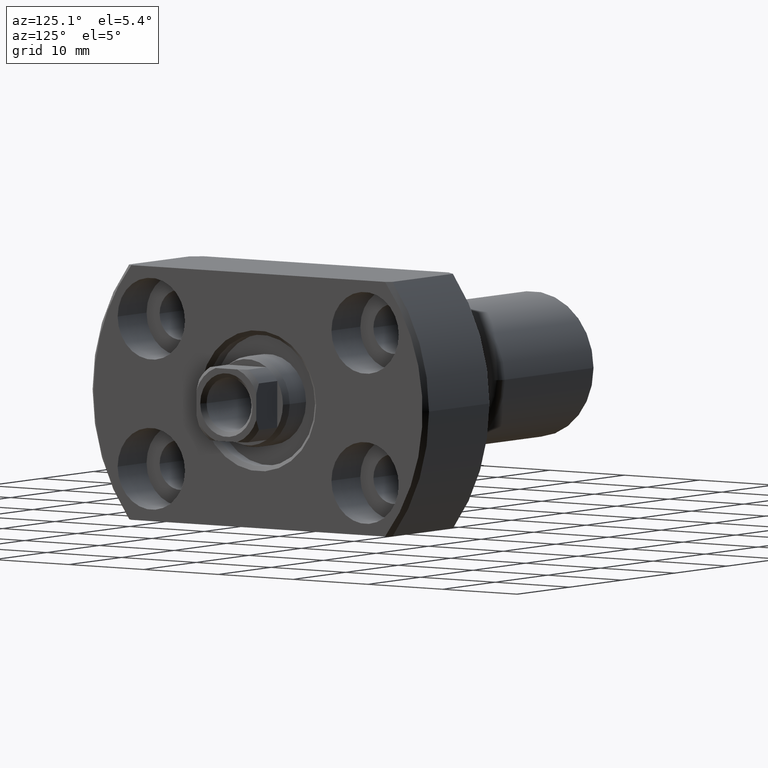
[diagram: clean part render]
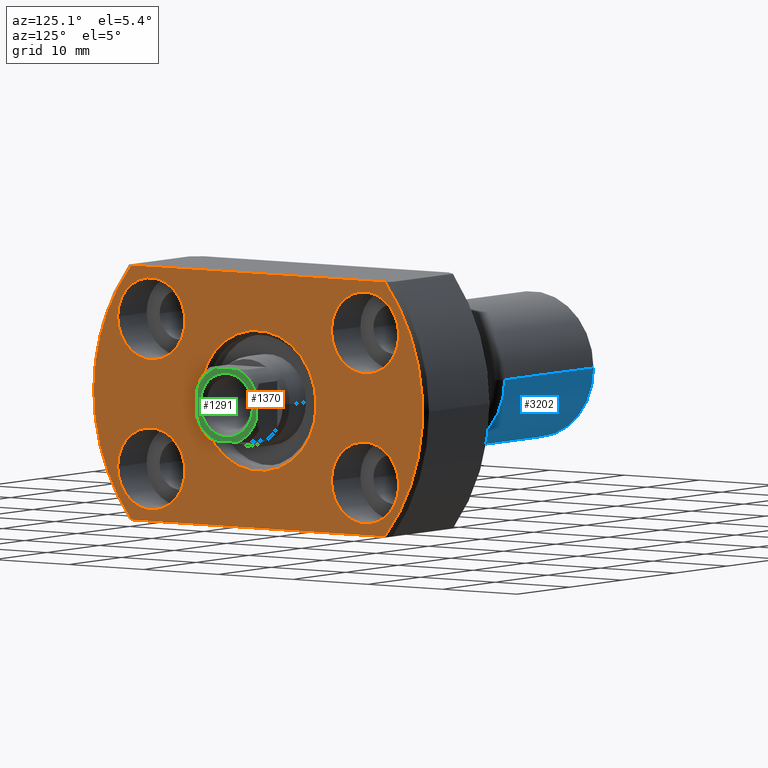
[diagram: same view with three faces highlighted in distinct colors, each labeled with its STEP entity id]
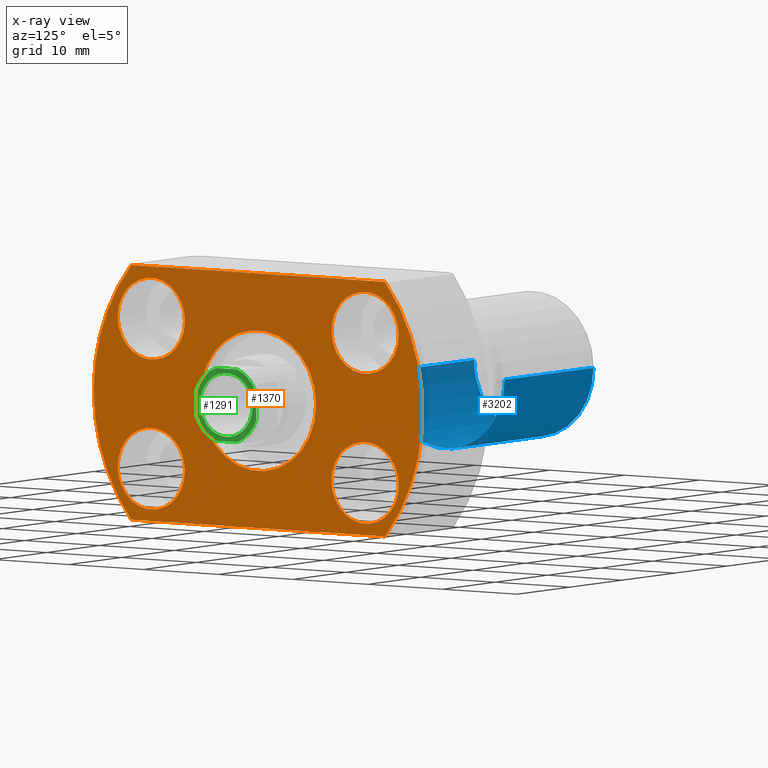
[diagram: x-ray of the same camera — body ghosted, the three highlighted faces saturated]
A machine part, auxiliary view with three faces highlighted in distinct colors.
The next image is the same camera in x-ray (body ghosted, the three faces saturated) — at least one of them is partly hidden behind the body in this view.
Their STEP definitions:

[orange] entity #1370 — the highlighted planar face has unit normal (-1, -0, 0).
#2 = VERTEX_POINT ( 'NONE', #2962 ) ;
#45 = EDGE_LOOP ( 'NONE', ( #537, #2956 ) ) ;
#49 = VERTEX_POINT ( 'NONE', #1279 ) ;
#56 = CARTESIAN_POINT ( 'NONE',  ( 24.50000000000000000, 1.224646799150062051E-17, 0.000000000000000000 ) ) ;
#79 = CARTESIAN_POINT ( 'NONE',  ( 24.50000000000000000, -7.071841973582562623E-13, 0.000000000000000000 ) ) ;
#84 = ORIENTED_EDGE ( 'NONE', *, *, #1112, .F. ) ;
#112 = VERTEX_POINT ( 'NONE', #459 ) ;
#146 = EDGE_CURVE ( 'NONE', #499, #426, #840, .T. ) ;
#149 = CIRCLE ( 'NONE', #1865, 4.500000000000205169 ) ;
#162 = VERTEX_POINT ( 'NONE', #245 ) ;
#166 = VECTOR ( 'NONE', #541, 1000.000000000000000 ) ;
#245 = CARTESIAN_POINT ( 'NONE',  ( 24.50000000000000000, 16.97056274847713553, 14.00000000000000355 ) ) ;
#254 = PLANE ( 'NONE',  #738 ) ;
#262 = AXIS2_PLACEMENT_3D ( 'NONE', #79, #809, #542 ) ;
#318 = ORIENTED_EDGE ( 'NONE', *, *, #2519, .T. ) ;
#336 = CIRCLE ( 'NONE', #427, 4.500000000000205169 ) ;
#344 = CARTESIAN_POINT ( 'NONE',  ( 24.50000000000000000, -22.00000000000000000, -14.00000000000000355 ) ) ;
#349 = CARTESIAN_POINT ( 'NONE',  ( 24.50000000000000000, 1.224646799150062051E-17, 0.000000000000000000 ) ) ;
#368 = DIRECTION ( 'NONE',  ( 1.000000000000000000, -2.889258529047467066E-14, 0.000000000000000000 ) ) ;
#419 = VERTEX_POINT ( 'NONE', #1128 ) ;
#420 = AXIS2_PLACEMENT_3D ( 'NONE', #3061, #1420, #1854 ) ;
#426 = VERTEX_POINT ( 'NONE', #679 ) ;
#427 = AXIS2_PLACEMENT_3D ( 'NONE', #779, #549, #1533 ) ;
#429 = DIRECTION ( 'NONE',  ( 2.852656382717284985E-14, 1.000000000000000000, 0.000000000000000000 ) ) ;
#435 = DIRECTION ( 'NONE',  ( 0.000000000000000000, 1.000000000000000000, 0.000000000000000000 ) ) ;
#459 = CARTESIAN_POINT ( 'NONE',  ( 24.49999999999971578, -9.800000000000501643, -8.250000000000000000 ) ) ;
#461 = EDGE_LOOP ( 'NONE', ( #1848, #2484, #318, #973, #2518 ) ) ;
#482 = EDGE_LOOP ( 'NONE', ( #1912, #1682 ) ) ;
#499 = VERTEX_POINT ( 'NONE', #2864 ) ;
#509 = CARTESIAN_POINT ( 'NONE',  ( 24.49999999999958789, -14.30000000000070770, 8.250000000000000000 ) ) ;
#537 = ORIENTED_EDGE ( 'NONE', *, *, #2897, .T. ) ;
#541 = DIRECTION ( 'NONE',  ( -4.998558363877804092E-19, 1.000000000000000000, -0.000000000000000000 ) ) ;
#542 = DIRECTION ( 'NONE',  ( 0.000000000000000000, -1.000000000000000000, 0.000000000000000000 ) ) ;
#549 = DIRECTION ( 'NONE',  ( 1.000000000000000000, -2.886466111666351885E-14, 0.000000000000000000 ) ) ;
#575 = EDGE_LOOP ( 'NONE', ( #3106, #84 ) ) ;
#579 = CIRCLE ( 'NONE', #2306, 4.500000000000206946 ) ;
#591 = CIRCLE ( 'NONE', #1363, 7.749999999999547029 ) ;
#596 = EDGE_CURVE ( 'NONE', #2818, #162, #963, .T. ) ;
#642 = AXIS2_PLACEMENT_3D ( 'NONE', #56, #2790, #1538 ) ;
#655 = ORIENTED_EDGE ( 'NONE', *, *, #1297, .F. ) ;
#679 = CARTESIAN_POINT ( 'NONE',  ( 24.49999999999945999, -18.80000000000091376, 8.250000000000000000 ) ) ;
#738 = AXIS2_PLACEMENT_3D ( 'NONE', #1241, #2215, #2701 ) ;
#779 = CARTESIAN_POINT ( 'NONE',  ( 24.50000000000041211, 14.29999999999929194, 8.250000000000000000 ) ) ;
#809 = DIRECTION ( 'NONE',  ( -1.000000000000000000, -4.998558363877804092E-19, 0.000000000000000000 ) ) ;
#824 = LINE ( 'NONE', #344, #166 ) ;
#840 = CIRCLE ( 'NONE', #2504, 4.500000000000205169 ) ;
#879 = EDGE_CURVE ( 'NONE', #426, #499, #2664, .T. ) ;
#898 = CARTESIAN_POINT ( 'NONE',  ( 24.50000000000000000, -16.97056274847713553, -14.00000000000000355 ) ) ;
#963 = LINE ( 'NONE', #1910, #3074 ) ;
#969 = DIRECTION ( 'NONE',  ( 1.000000000000000000, -2.889258529047467066E-14, 0.000000000000000000 ) ) ;
#973 = ORIENTED_EDGE ( 'NONE', *, *, #1499, .T. ) ;
#983 = FACE_BOUND ( 'NONE', #45, .T. ) ;
#1038 = VERTEX_POINT ( 'NONE', #2883 ) ;
#1047 = DIRECTION ( 'NONE',  ( -1.000000000000000000, -4.998558363877804092E-19, 0.000000000000000000 ) ) ;
#1112 = EDGE_CURVE ( 'NONE', #2802, #2, #336, .T. ) ;
#1121 = CARTESIAN_POINT ( 'NONE',  ( 24.50000000000000000, 16.97056274847713553, -14.00000000000000355 ) ) ;
#1128 = CARTESIAN_POINT ( 'NONE',  ( 24.50000000000000000, -7.750000000000701661, 9.491012693391979898E-16 ) ) ;
#1151 = DIRECTION ( 'NONE',  ( 2.852656382717286247E-14, 1.000000000000000000, 0.000000000000000000 ) ) ;
#1165 = DIRECTION ( 'NONE',  ( -0.000000000000000000, 1.000000000000000000, 0.000000000000000000 ) ) ;
#1186 = FACE_BOUND ( 'NONE', #575, .T. ) ;
#1241 = CARTESIAN_POINT ( 'NONE',  ( 24.50000000000000000, -22.00000000000000000, 0.000000000000000000 ) ) ;
#1276 = DIRECTION ( 'NONE',  ( 1.000000000000000000, -2.889258529047467066E-14, 0.000000000000000000 ) ) ;
#1279 = CARTESIAN_POINT ( 'NONE',  ( 24.50000000000000000, -22.00000000000000000, 0.000000000000000000 ) ) ;
#1297 = EDGE_CURVE ( 'NONE', #1362, #112, #1791, .T. ) ;
#1362 = VERTEX_POINT ( 'NONE', #2999 ) ;
#1363 = AXIS2_PLACEMENT_3D ( 'NONE', #2318, #1047, #1796 ) ;
#1370 = ADVANCED_FACE ( 'NONE', ( #983, #1186, #2943, #1991, #1703, #2197 ), #254, .F. ) ;
#1389 = CIRCLE ( 'NONE', #420, 22.00000000000000000 ) ;
#1391 = CARTESIAN_POINT ( 'NONE',  ( 24.50000000000054357, 18.79999999999949623, -8.250000000000000000 ) ) ;
#1420 = DIRECTION ( 'NONE',  ( 1.000000000000000000, 4.998558363877804092E-19, -0.000000000000000000 ) ) ;
#1434 = EDGE_CURVE ( 'NONE', #419, #1038, #591, .T. ) ;
#1448 = CIRCLE ( 'NONE', #2128, 4.500000000000205169 ) ;
#1499 = EDGE_CURVE ( 'NONE', #1565, #2969, #824, .T. ) ;
#1507 = DIRECTION ( 'NONE',  ( 2.852656382717286247E-14, 1.000000000000000000, 0.000000000000000000 ) ) ;
#1533 = DIRECTION ( 'NONE',  ( 2.852656382717286247E-14, 1.000000000000000000, 0.000000000000000000 ) ) ;
#1538 = DIRECTION ( 'NONE',  ( 0.000000000000000000, 1.000000000000000000, 0.000000000000000000 ) ) ;
#1565 = VERTEX_POINT ( 'NONE', #898 ) ;
#1682 = ORIENTED_EDGE ( 'NONE', *, *, #2947, .F. ) ;
#1687 = DIRECTION ( 'NONE',  ( 1.000000000000000000, 4.998558363877804092E-19, -0.000000000000000000 ) ) ;
#1703 = FACE_BOUND ( 'NONE', #482, .T. ) ;
#1714 = AXIS2_PLACEMENT_3D ( 'NONE', #349, #1687, #435 ) ;
#1721 = CIRCLE ( 'NONE', #2087, 4.500000000000205169 ) ;
#1734 = DIRECTION ( 'NONE',  ( 2.852656382717286247E-14, 1.000000000000000000, 0.000000000000000000 ) ) ;
#1791 = CIRCLE ( 'NONE', #2053, 4.500000000000206946 ) ;
#1796 = DIRECTION ( 'NONE',  ( 0.000000000000000000, -1.000000000000000000, 0.000000000000000000 ) ) ;
#1810 = CARTESIAN_POINT ( 'NONE',  ( 24.50000000000028422, 9.799999999999087663, 8.250000000000000000 ) ) ;
#1848 = ORIENTED_EDGE ( 'NONE', *, *, #596, .F. ) ;
#1854 = DIRECTION ( 'NONE',  ( 0.000000000000000000, 1.000000000000000000, 0.000000000000000000 ) ) ;
#1865 = AXIS2_PLACEMENT_3D ( 'NONE', #2961, #2198, #1507 ) ;
#1893 = EDGE_CURVE ( 'NONE', #2818, #49, #2682, .T. ) ;
#1910 = CARTESIAN_POINT ( 'NONE',  ( 24.50000000000000000, 17.61391495380915018, 14.00000000000000355 ) ) ;
#1912 = ORIENTED_EDGE ( 'NONE', *, *, #2239, .F. ) ;
#1915 = CARTESIAN_POINT ( 'NONE',  ( 24.50000000000041211, 14.29999999999929194, -8.250000000000000000 ) ) ;
#1991 = FACE_BOUND ( 'NONE', #2794, .T. ) ;
#2053 = AXIS2_PLACEMENT_3D ( 'NONE', #2237, #969, #2686 ) ;
#2087 = AXIS2_PLACEMENT_3D ( 'NONE', #1915, #2379, #1151 ) ;
#2100 = CARTESIAN_POINT ( 'NONE',  ( 24.50000000000000000, -16.97056274847713553, 14.00000000000000355 ) ) ;
#2128 = AXIS2_PLACEMENT_3D ( 'NONE', #3159, #3215, #1734 ) ;
#2168 = CARTESIAN_POINT ( 'NONE',  ( 24.49999999999958789, -14.30000000000070770, 8.250000000000000000 ) ) ;
#2181 = VERTEX_POINT ( 'NONE', #1391 ) ;
#2197 = FACE_OUTER_BOUND ( 'NONE', #461, .T. ) ;
#2198 = DIRECTION ( 'NONE',  ( 1.000000000000000000, -2.886466111666351885E-14, 0.000000000000000000 ) ) ;
#2200 = AXIS2_PLACEMENT_3D ( 'NONE', #509, #1276, #2471 ) ;
#2215 = DIRECTION ( 'NONE',  ( -1.000000000000000000, -4.998558363877804092E-19, 0.000000000000000000 ) ) ;
#2231 = ORIENTED_EDGE ( 'NONE', *, *, #3034, .F. ) ;
#2237 = CARTESIAN_POINT ( 'NONE',  ( 24.49999999999958789, -14.30000000000070770, -8.250000000000000000 ) ) ;
#2239 = EDGE_CURVE ( 'NONE', #2181, #2544, #1448, .T. ) ;
#2306 = AXIS2_PLACEMENT_3D ( 'NONE', #3115, #368, #429 ) ;
#2318 = CARTESIAN_POINT ( 'NONE',  ( 24.50000000000000000, -7.071841973582562623E-13, 0.000000000000000000 ) ) ;
#2379 = DIRECTION ( 'NONE',  ( 1.000000000000000000, -2.889258529047467066E-14, 0.000000000000000000 ) ) ;
#2440 = CIRCLE ( 'NONE', #262, 7.749999999999547029 ) ;
#2471 = DIRECTION ( 'NONE',  ( 2.852656382717286247E-14, 1.000000000000000000, 0.000000000000000000 ) ) ;
#2484 = ORIENTED_EDGE ( 'NONE', *, *, #1893, .T. ) ;
#2504 = AXIS2_PLACEMENT_3D ( 'NONE', #2168, #2913, #2965 ) ;
#2518 = ORIENTED_EDGE ( 'NONE', *, *, #2570, .T. ) ;
#2519 = EDGE_CURVE ( 'NONE', #49, #1565, #1389, .T. ) ;
#2544 = VERTEX_POINT ( 'NONE', #2583 ) ;
#2570 = EDGE_CURVE ( 'NONE', #2969, #162, #2756, .T. ) ;
#2581 = ORIENTED_EDGE ( 'NONE', *, *, #879, .F. ) ;
#2583 = CARTESIAN_POINT ( 'NONE',  ( 24.50000000000028422, 9.799999999999087663, -8.250000000000000000 ) ) ;
#2643 = ORIENTED_EDGE ( 'NONE', *, *, #146, .F. ) ;
#2664 = CIRCLE ( 'NONE', #2200, 4.500000000000205169 ) ;
#2682 = CIRCLE ( 'NONE', #642, 22.00000000000000000 ) ;
#2686 = DIRECTION ( 'NONE',  ( 2.852656382717284985E-14, 1.000000000000000000, 0.000000000000000000 ) ) ;
#2700 = EDGE_CURVE ( 'NONE', #2, #2802, #149, .T. ) ;
#2701 = DIRECTION ( 'NONE',  ( 4.998558363877804092E-19, -1.000000000000000000, 0.000000000000000000 ) ) ;
#2756 = CIRCLE ( 'NONE', #1714, 22.00000000000000000 ) ;
#2790 = DIRECTION ( 'NONE',  ( 1.000000000000000000, 4.998558363877804092E-19, -0.000000000000000000 ) ) ;
#2794 = EDGE_LOOP ( 'NONE', ( #2231, #655 ) ) ;
#2802 = VERTEX_POINT ( 'NONE', #1810 ) ;
#2818 = VERTEX_POINT ( 'NONE', #2100 ) ;
#2864 = CARTESIAN_POINT ( 'NONE',  ( 24.49999999999971578, -9.800000000000503420, 8.250000000000000000 ) ) ;
#2883 = CARTESIAN_POINT ( 'NONE',  ( 24.50000000000000000, 7.749999999998841815, 0.000000000000000000 ) ) ;
#2897 = EDGE_CURVE ( 'NONE', #1038, #419, #2440, .T. ) ;
#2913 = DIRECTION ( 'NONE',  ( 1.000000000000000000, -2.889258529047467066E-14, 0.000000000000000000 ) ) ;
#2935 = EDGE_LOOP ( 'NONE', ( #2643, #2581 ) ) ;
#2943 = FACE_BOUND ( 'NONE', #2935, .T. ) ;
#2947 = EDGE_CURVE ( 'NONE', #2544, #2181, #1721, .T. ) ;
#2956 = ORIENTED_EDGE ( 'NONE', *, *, #1434, .T. ) ;
#2961 = CARTESIAN_POINT ( 'NONE',  ( 24.50000000000041211, 14.29999999999929194, 8.250000000000000000 ) ) ;
#2962 = CARTESIAN_POINT ( 'NONE',  ( 24.50000000000054357, 18.79999999999949623, 8.250000000000000000 ) ) ;
#2965 = DIRECTION ( 'NONE',  ( 2.852656382717286247E-14, 1.000000000000000000, 0.000000000000000000 ) ) ;
#2969 = VERTEX_POINT ( 'NONE', #1121 ) ;
#2999 = CARTESIAN_POINT ( 'NONE',  ( 24.49999999999945999, -18.80000000000091376, -8.250000000000000000 ) ) ;
#3034 = EDGE_CURVE ( 'NONE', #112, #1362, #579, .T. ) ;
#3061 = CARTESIAN_POINT ( 'NONE',  ( 24.50000000000000000, 1.224646799150062051E-17, 0.000000000000000000 ) ) ;
#3074 = VECTOR ( 'NONE', #1165, 1000.000000000000000 ) ;
#3106 = ORIENTED_EDGE ( 'NONE', *, *, #2700, .F. ) ;
#3115 = CARTESIAN_POINT ( 'NONE',  ( 24.49999999999958789, -14.30000000000070770, -8.250000000000000000 ) ) ;
#3159 = CARTESIAN_POINT ( 'NONE',  ( 24.50000000000041211, 14.29999999999929194, -8.250000000000000000 ) ) ;
#3215 = DIRECTION ( 'NONE',  ( 1.000000000000000000, -2.889258529047467066E-14, 0.000000000000000000 ) ) ;

[blue] entity #3202 — the highlighted cylindrical surface (partial cylindrical patch) has radius 8 mm, axis along (-1, -0, -0).
#26 = EDGE_CURVE ( 'NONE', #887, #1546, #422, .T. ) ;
#43 = EDGE_LOOP ( 'NONE', ( #881, #964, #2265, #607 ) ) ;
#59 = AXIS2_PLACEMENT_3D ( 'NONE', #272, #463, #1258 ) ;
#64 = CARTESIAN_POINT ( 'NONE',  ( 1.500000000000000666, -7.999999999999996447, 9.797174393178821713E-16 ) ) ;
#102 = AXIS2_PLACEMENT_3D ( 'NONE', #1224, #2233, #3165 ) ;
#167 = LINE ( 'NONE', #2905, #843 ) ;
#272 = CARTESIAN_POINT ( 'NONE',  ( 18.40000000000006253, 1.967957872607087643E-16, 0.000000000000000000 ) ) ;
#390 = DIRECTION ( 'NONE',  ( -1.000000000000000000, -1.069542322069065801E-17, -0.000000000000000000 ) ) ;
#422 = CIRCLE ( 'NONE', #2915, 7.999999999999996447 ) ;
#463 = DIRECTION ( 'NONE',  ( -1.000000000000000000, -1.069542322069065801E-17, -0.000000000000000000 ) ) ;
#467 = LINE ( 'NONE', #1760, #1360 ) ;
#546 = EDGE_CURVE ( 'NONE', #1744, #887, #167, .T. ) ;
#607 = ORIENTED_EDGE ( 'NONE', *, *, #26, .F. ) ;
#722 = DIRECTION ( 'NONE',  ( 0.000000000000000000, -1.000000000000000000, 0.000000000000000000 ) ) ;
#783 = EDGE_CURVE ( 'NONE', #1651, #1546, #467, .T. ) ;
#843 = VECTOR ( 'NONE', #390, 1000.000000000000000 ) ;
#881 = ORIENTED_EDGE ( 'NONE', *, *, #546, .F. ) ;
#887 = VERTEX_POINT ( 'NONE', #2032 ) ;
#964 = ORIENTED_EDGE ( 'NONE', *, *, #3212, .T. ) ;
#1223 = CARTESIAN_POINT ( 'NONE',  ( 18.40000000000006253, 7.999999999999996447, 9.797174393178821713E-16 ) ) ;
#1224 = CARTESIAN_POINT ( 'NONE',  ( 0.000000000000000000, 0.000000000000000000, 0.000000000000000000 ) ) ;
#1258 = DIRECTION ( 'NONE',  ( 0.000000000000000000, -1.000000000000000000, 0.000000000000000000 ) ) ;
#1360 = VECTOR ( 'NONE', #2453, 1000.000000000000000 ) ;
#1502 = CYLINDRICAL_SURFACE ( 'NONE', #102, 7.999999999999996447 ) ;
#1546 = VERTEX_POINT ( 'NONE', #64 ) ;
#1651 = VERTEX_POINT ( 'NONE', #1875 ) ;
#1744 = VERTEX_POINT ( 'NONE', #1223 ) ;
#1760 = CARTESIAN_POINT ( 'NONE',  ( 8.556338576552522708E-17, -7.999999999999996447, 0.000000000000000000 ) ) ;
#1827 = CIRCLE ( 'NONE', #59, 7.999999999999996447 ) ;
#1875 = CARTESIAN_POINT ( 'NONE',  ( 18.40000000000006253, -7.999999999999996447, 0.000000000000000000 ) ) ;
#1977 = DIRECTION ( 'NONE',  ( -1.000000000000000000, -1.069542322069065801E-17, -0.000000000000000000 ) ) ;
#1987 = FACE_OUTER_BOUND ( 'NONE', #43, .T. ) ;
#2032 = CARTESIAN_POINT ( 'NONE',  ( 1.500000000000000888, 7.999999999999996447, 0.000000000000000000 ) ) ;
#2233 = DIRECTION ( 'NONE',  ( -1.000000000000000000, -1.069542322069065801E-17, -0.000000000000000000 ) ) ;
#2265 = ORIENTED_EDGE ( 'NONE', *, *, #783, .T. ) ;
#2453 = DIRECTION ( 'NONE',  ( -1.000000000000000000, -1.069542322069065801E-17, -0.000000000000000000 ) ) ;
#2905 = CARTESIAN_POINT ( 'NONE',  ( -8.556338576552522708E-17, 7.999999999999996447, 9.797174393178821713E-16 ) ) ;
#2915 = AXIS2_PLACEMENT_3D ( 'NONE', #3196, #1977, #722 ) ;
#3165 = DIRECTION ( 'NONE',  ( 1.069542322069065801E-17, -1.000000000000000000, 0.000000000000000000 ) ) ;
#3196 = CARTESIAN_POINT ( 'NONE',  ( 1.500000000000000888, 1.604313483103599703E-17, 0.000000000000000000 ) ) ;
#3202 = ADVANCED_FACE ( 'NONE', ( #1987 ), #1502, .T. ) ;
#3212 = EDGE_CURVE ( 'NONE', #1744, #1651, #1827, .T. ) ;

[green] entity #1291 — the highlighted planar face has unit normal (-1, -0, 0).
#92 = ORIENTED_EDGE ( 'NONE', *, *, #2252, .T. ) ;
#105 = EDGE_CURVE ( 'NONE', #3125, #787, #996, .T. ) ;
#138 = ORIENTED_EDGE ( 'NONE', *, *, #726, .T. ) ;
#145 = AXIS2_PLACEMENT_3D ( 'NONE', #1427, #1446, #1982 ) ;
#193 = CARTESIAN_POINT ( 'NONE',  ( 59.99999999999994316, -2.561737691490833857, 3.999999999998824940 ) ) ;
#219 = LINE ( 'NONE', #3208, #888 ) ;
#222 = LINE ( 'NONE', #1992, #676 ) ;
#266 = DIRECTION ( 'NONE',  ( 1.625200096080654050E-14, 1.000000000000000000, 1.692916766750681384E-16 ) ) ;
#269 = VECTOR ( 'NONE', #266, 1000.000000000000000 ) ;
#307 = EDGE_CURVE ( 'NONE', #1943, #1345, #2645, .T. ) ;
#311 = DIRECTION ( 'NONE',  ( 0.000000000000000000, -1.000000000000000000, 0.000000000000000000 ) ) ;
#378 = AXIS2_PLACEMENT_3D ( 'NONE', #2178, #2256, #2740 ) ;
#414 = DIRECTION ( 'NONE',  ( 1.000000000000000000, 1.069542322069065801E-17, 0.000000000000000000 ) ) ;
#493 = ORIENTED_EDGE ( 'NONE', *, *, #1702, .T. ) ;
#514 = EDGE_CURVE ( 'NONE', #2728, #1119, #219, .T. ) ;
#557 = CARTESIAN_POINT ( 'NONE',  ( 59.99999999999998579, -9.943588796953380466E-13, 0.000000000000000000 ) ) ;
#622 = CARTESIAN_POINT ( 'NONE',  ( 59.99999999999998579, -9.943588796953380466E-13, 0.000000000000000000 ) ) ;
#624 = AXIS2_PLACEMENT_3D ( 'NONE', #1740, #2939, #2213 ) ;
#636 = AXIS2_PLACEMENT_3D ( 'NONE', #622, #867, #3114 ) ;
#641 = FACE_BOUND ( 'NONE', #687, .T. ) ;
#676 = VECTOR ( 'NONE', #757, 1000.000000000000000 ) ;
#687 = EDGE_LOOP ( 'NONE', ( #2733, #493 ) ) ;
#696 = DIRECTION ( 'NONE',  ( 0.000000000000000000, 1.692916766750681384E-16, -1.000000000000000000 ) ) ;
#726 = EDGE_CURVE ( 'NONE', #1530, #1119, #2315, .T. ) ;
#757 = DIRECTION ( 'NONE',  ( 0.000000000000000000, -5.078750300252043906E-16, 1.000000000000000000 ) ) ;
#781 = AXIS2_PLACEMENT_3D ( 'NONE', #1358, #414, #2850 ) ;
#787 = VERTEX_POINT ( 'NONE', #1007 ) ;
#807 = EDGE_CURVE ( 'NONE', #1530, #1661, #222, .T. ) ;
#867 = DIRECTION ( 'NONE',  ( -1.000000000000000000, -1.069542322069065801E-17, -0.000000000000000000 ) ) ;
#880 = CIRCLE ( 'NONE', #781, 4.250000000000161648 ) ;
#888 = VECTOR ( 'NONE', #1207, 1000.000000000000000 ) ;
#895 = AXIS2_PLACEMENT_3D ( 'NONE', #557, #1032, #311 ) ;
#941 = AXIS2_PLACEMENT_3D ( 'NONE', #2041, #3018, #2276 ) ;
#953 = ORIENTED_EDGE ( 'NONE', *, *, #307, .F. ) ;
#996 = LINE ( 'NONE', #193, #269 ) ;
#1007 = CARTESIAN_POINT ( 'NONE',  ( 60.00000000000000711, 1.436140661638271698, 3.999999999998825828 ) ) ;
#1018 = ORIENTED_EDGE ( 'NONE', *, *, #807, .F. ) ;
#1032 = DIRECTION ( 'NONE',  ( -1.000000000000000000, -1.069542322069065801E-17, -0.000000000000000000 ) ) ;
#1100 = CIRCLE ( 'NONE', #636, 3.500000000000160316 ) ;
#1119 = VERTEX_POINT ( 'NONE', #2744 ) ;
#1207 = DIRECTION ( 'NONE',  ( -1.625200096080654050E-14, -1.000000000000000000, -1.692916766750681384E-16 ) ) ;
#1225 = CARTESIAN_POINT ( 'NONE',  ( 60.00000000000005684, 3.999999999997831512, -1.436140661641029048 ) ) ;
#1226 = CARTESIAN_POINT ( 'NONE',  ( 60.00000000000000711, 1.436140661638260596, -3.999999999998824940 ) ) ;
#1291 = ADVANCED_FACE ( 'NONE', ( #641, #1633 ), #1385, .F. ) ;
#1345 = VERTEX_POINT ( 'NONE', #1225 ) ;
#1358 = CARTESIAN_POINT ( 'NONE',  ( 59.99999999999998579, 6.417253932414392401E-16, 0.000000000000000000 ) ) ;
#1385 = PLANE ( 'NONE',  #378 ) ;
#1427 = CARTESIAN_POINT ( 'NONE',  ( 59.99999999999998579, 6.417253932414392401E-16, 0.000000000000000000 ) ) ;
#1444 = VERTEX_POINT ( 'NONE', #2070 ) ;
#1446 = DIRECTION ( 'NONE',  ( 1.000000000000000000, 1.069542322069065801E-17, 0.000000000000000000 ) ) ;
#1492 = EDGE_CURVE ( 'NONE', #2121, #1444, #1580, .T. ) ;
#1530 = VERTEX_POINT ( 'NONE', #1835 ) ;
#1563 = ORIENTED_EDGE ( 'NONE', *, *, #3102, .T. ) ;
#1580 = CIRCLE ( 'NONE', #895, 3.500000000000160316 ) ;
#1587 = CARTESIAN_POINT ( 'NONE',  ( 59.99999999999998579, 3.499999999999166889, 0.000000000000000000 ) ) ;
#1633 = FACE_OUTER_BOUND ( 'NONE', #1966, .T. ) ;
#1661 = VERTEX_POINT ( 'NONE', #1846 ) ;
#1702 = EDGE_CURVE ( 'NONE', #1444, #2121, #1100, .T. ) ;
#1740 = CARTESIAN_POINT ( 'NONE',  ( 59.99999999999998579, 6.417253932414392401E-16, 0.000000000000000000 ) ) ;
#1835 = CARTESIAN_POINT ( 'NONE',  ( 59.99999999999998579, -3.999999999999817923, -1.436140661635549431 ) ) ;
#1846 = CARTESIAN_POINT ( 'NONE',  ( 59.99999999999991473, -3.999999999999819700, 1.436140661635499249 ) ) ;
#1922 = CIRCLE ( 'NONE', #145, 4.250000000000166089 ) ;
#1943 = VERTEX_POINT ( 'NONE', #2552 ) ;
#1966 = EDGE_LOOP ( 'NONE', ( #2220, #2455, #953, #1563, #2697, #92, #1018, #138 ) ) ;
#1982 = DIRECTION ( 'NONE',  ( 0.000000000000000000, -1.000000000000000000, 5.329070518200751394E-15 ) ) ;
#1992 = CARTESIAN_POINT ( 'NONE',  ( 59.99999999999991473, -3.999999999999817923, -2.561737691489840429 ) ) ;
#1996 = VECTOR ( 'NONE', #696, 1000.000000000000000 ) ;
#2041 = CARTESIAN_POINT ( 'NONE',  ( 59.99999999999998579, 6.417253932414392401E-16, 0.000000000000000000 ) ) ;
#2070 = CARTESIAN_POINT ( 'NONE',  ( 59.99999999999998579, -3.500000000001269651, 4.286263797016072847E-16 ) ) ;
#2121 = VERTEX_POINT ( 'NONE', #1587 ) ;
#2178 = CARTESIAN_POINT ( 'NONE',  ( 59.99999999999998579, 8.673617379884037444E-16, 0.000000000000000000 ) ) ;
#2213 = DIRECTION ( 'NONE',  ( 0.000000000000000000, -1.000000000000000000, 8.881784197001252323E-16 ) ) ;
#2220 = ORIENTED_EDGE ( 'NONE', *, *, #514, .F. ) ;
#2252 = EDGE_CURVE ( 'NONE', #3125, #1661, #1922, .T. ) ;
#2256 = DIRECTION ( 'NONE',  ( -1.000000000000000000, -1.069542322069065801E-17, 0.000000000000000000 ) ) ;
#2276 = DIRECTION ( 'NONE',  ( 0.000000000000000000, -1.000000000000000000, 0.000000000000000000 ) ) ;
#2315 = CIRCLE ( 'NONE', #941, 4.250000000000181188 ) ;
#2387 = CIRCLE ( 'NONE', #624, 4.250000000000166089 ) ;
#2455 = ORIENTED_EDGE ( 'NONE', *, *, #3046, .T. ) ;
#2552 = CARTESIAN_POINT ( 'NONE',  ( 59.99999999999998579, 3.999999999997830624, 1.436140661641043703 ) ) ;
#2645 = LINE ( 'NONE', #2910, #1996 ) ;
#2697 = ORIENTED_EDGE ( 'NONE', *, *, #105, .F. ) ;
#2728 = VERTEX_POINT ( 'NONE', #1226 ) ;
#2733 = ORIENTED_EDGE ( 'NONE', *, *, #1492, .T. ) ;
#2740 = DIRECTION ( 'NONE',  ( 1.069542322069065801E-17, -1.000000000000000000, 0.000000000000000000 ) ) ;
#2744 = CARTESIAN_POINT ( 'NONE',  ( 59.99999999999996447, -1.436140661638316773, -3.999999999998825828 ) ) ;
#2850 = DIRECTION ( 'NONE',  ( 0.000000000000000000, -1.000000000000000000, 8.881784197001252323E-16 ) ) ;
#2910 = CARTESIAN_POINT ( 'NONE',  ( 60.00000000000005684, 3.999999999997830624, 2.561737691489839985 ) ) ;
#2939 = DIRECTION ( 'NONE',  ( 1.000000000000000000, 1.069542322069065801E-17, 0.000000000000000000 ) ) ;
#2958 = CARTESIAN_POINT ( 'NONE',  ( 59.99999999999996447, -1.436140661638269700, 3.999999999998825828 ) ) ;
#3018 = DIRECTION ( 'NONE',  ( 1.000000000000000000, 1.069542322069065801E-17, 0.000000000000000000 ) ) ;
#3046 = EDGE_CURVE ( 'NONE', #2728, #1345, #880, .T. ) ;
#3102 = EDGE_CURVE ( 'NONE', #1943, #787, #2387, .T. ) ;
#3114 = DIRECTION ( 'NONE',  ( 0.000000000000000000, -1.000000000000000000, 0.000000000000000000 ) ) ;
#3125 = VERTEX_POINT ( 'NONE', #2958 ) ;
#3208 = CARTESIAN_POINT ( 'NONE',  ( 60.00000000000002842, 2.561737691488845226, -3.999999999998824940 ) ) ;